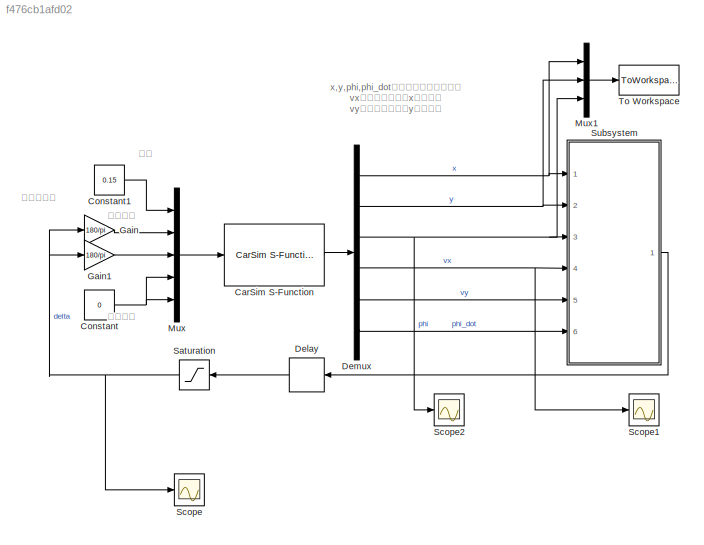
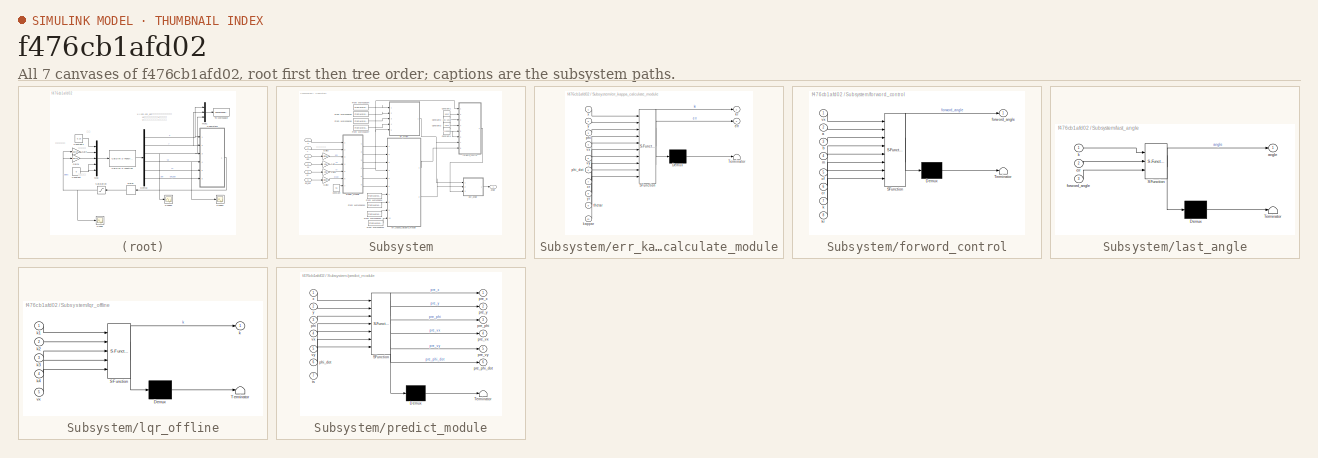
[diagram: thumbnail index - all 7 canvases of the model, root first then tree order]
MODEL slx_f476cb1afd02
KIND model
CONFIG AbsTol = auto
CONFIG EnableMultiTasking = off
CONFIG FixedStep = auto
CONFIG MaxStep = auto
CONFIG MinStep = auto
CONFIG RelTol = 1e-3
CONFIG SampleTimeConstraint = Unconstrained
CONFIG Solver = VariableStepAuto
CONFIG SolverName = VariableStepAuto
CONFIG StartTime = 0.0
CONFIG StopTime = 30
BLOCK [Reference] CarSim S-Function  REF=Solver_SF/CarSim S-Function
  Ports = [1, 1]
  Priority = 1
  SourceBlock = Solver_SF/CarSim S-Function
  SourceType = Vehicle math model library
BLOCK [Constant] Constant
  Value = 0
BLOCK [Constant] Constant1
  Value = 0.15
BLOCK [Delay] Delay
  DelayLength = 1
  InputPortMap = u0
  Ports = [1, 1]
  UseCircularBuffer = on
BLOCK [Demux] Demux
  DisplayOption = bar
  Outputs = 6
  Ports = [1, 6]
BLOCK [Gain] Gain
  Gain = 180/pi
  OutDataTypeStr = Inherit: Inherit via internal rule
  ParamDataTypeStr = Inherit: Inherit via internal rule
  SaturateOnIntegerOverflow = off
BLOCK [Gain] Gain1
  Gain = 180/pi
  OutDataTypeStr = Inherit: Inherit via internal rule
  ParamDataTypeStr = Inherit: Inherit via internal rule
  SaturateOnIntegerOverflow = off
BLOCK [Mux] Mux
  DisplayOption = bar
  Inputs = 5
  Ports = [5, 1]
BLOCK [Mux] Mux1
  DisplayOption = bar
  Inputs = 3
  Ports = [3, 1]
BLOCK [Saturate] Saturation
  InputPortMap = u0
  LowerLimit = -1.2
  Ports = [1, 1]
  UpperLimit = 1.2
BLOCK [Scope] Scope
  Floating = off
  NumInputPorts = 1
  Ports = [1]
  ScopeSpecificationString = Simulink.scopes.TimeScopeBlockCfg('CurrentConfiguration', extmgr.ConfigurationSet(extmgr.Configuration('Core','General UI',true),extmgr.Configuration('Core','Source UI',true),extmgr.Configuration('Sources','WiredSimulink',true),extmgr.Configuration('Visuals','Time Domain',true,'SerializedDisplays',{struct('MinYLimReal','-1.41063','MaxYLimReal','1.49007','YLabelReal','','MinYLimMag','0.00000','MaxY...<+1402ch>
BLOCK [Scope] Scope1
  Floating = off
  NumInputPorts = 1
  Ports = [1]
  ScopeSpecificationString = Simulink.scopes.TimeScopeBlockCfg('CurrentConfiguration', extmgr.ConfigurationSet(extmgr.Configuration('Core','General UI',true),extmgr.Configuration('Core','Source UI',true),extmgr.Configuration('Sources','WiredSimulink',true,'DataLoggingVariableName','ScopeData1'),extmgr.Configuration('Visuals','Time Domain',true,'SerializedDisplays',{struct('MinYLimReal','-9.92834','MaxYLimReal','89.35505','YLa...<+1444ch>
BLOCK [Scope] Scope2
  Floating = off
  NumInputPorts = 1
  Ports = [1]
  ScopeSpecificationString = Simulink.scopes.TimeScopeBlockCfg('CurrentConfiguration', extmgr.ConfigurationSet(extmgr.Configuration('Core','General UI',true),extmgr.Configuration('Core','Source UI',true),extmgr.Configuration('Sources','WiredSimulink',true,'DataLoggingVariableName','ScopeData2'),extmgr.Configuration('Visuals','Time Domain',true,'SerializedDisplays',{struct('MinYLimReal','-44.79296','MaxYLimReal','402.37867','Y...<+1451ch>
BLOCK [SubSystem] Subsystem
  Ports = [6, 1]
  RequestExecContextInheritance = off
BLOCK [Constant] Subsystem/Constant
  Value = 0.1
BLOCK [Constant] Subsystem/Constant1
  Value = 1.015
BLOCK [Constant] Subsystem/Constant2
  Value = 2.91-1.015
BLOCK [Constant] Subsystem/Constant3
  Value = 1412
BLOCK [Constant] Subsystem/Constant4
  Value = -110000
BLOCK [FromWorkspace] Subsystem/From Workspace
  SampleTime = 0
  VariableName = xr
  ZeroCross = on
BLOCK [FromWorkspace] Subsystem/From Workspace1
  SampleTime = 0
  VariableName = yr
  ZeroCross = on
BLOCK [FromWorkspace] Subsystem/From Workspace2
  SampleTime = 0
  VariableName = thetar
  ZeroCross = on
BLOCK [FromWorkspace] Subsystem/From Workspace3
  SampleTime = 0
  VariableName = kappar
  ZeroCross = on
BLOCK [FromWorkspace] Subsystem/From Workspace4
  SampleTime = 0
  VariableName = k1
  ZeroCross = on
BLOCK [FromWorkspace] Subsystem/From Workspace5
  SampleTime = 0
  VariableName = k2
  ZeroCross = on
BLOCK [FromWorkspace] Subsystem/From Workspace6
  SampleTime = 0
  VariableName = k3
  ZeroCross = on
BLOCK [FromWorkspace] Subsystem/From Workspace7
  SampleTime = 0
  VariableName = k4
  ZeroCross = on
BLOCK [Gain] Subsystem/Gain
  Gain = 1/3.6
  OutDataTypeStr = Inherit: Inherit via internal rule
  ParamDataTypeStr = Inherit: Inherit via internal rule
  SaturateOnIntegerOverflow = off
BLOCK [Gain] Subsystem/Gain1
  Gain = 1/3.6
  OutDataTypeStr = Inherit: Inherit via internal rule
  ParamDataTypeStr = Inherit: Inherit via internal rule
  SaturateOnIntegerOverflow = off
BLOCK [Gain] Subsystem/Gain2
  Gain = pi/180
  OutDataTypeStr = Inherit: Inherit via internal rule
  ParamDataTypeStr = Inherit: Inherit via internal rule
  SaturateOnIntegerOverflow = off
BLOCK [Gain] Subsystem/Gain3
  Gain = pi/180
  OutDataTypeStr = Inherit: Inherit via internal rule
  ParamDataTypeStr = Inherit: Inherit via internal rule
  SaturateOnIntegerOverflow = off
BLOCK [Outport] Subsystem/angle
  IconDisplay = Port number
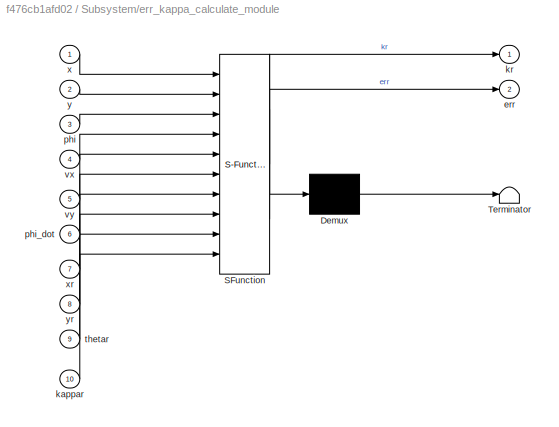
BLOCK [SubSystem] Subsystem/err_kappa_calculate_module
  ErrorFcn = Stateflow.Translate.translate
  PermitHierarchicalResolution = ExplicitOnly
  Ports = [10, 2]
  RequestExecContextInheritance = off
  SFBlockType = MATLAB Function
  TreatAsAtomicUnit = on
BLOCK [Demux] Subsystem/err_kappa_calculate_module/ Demux 
  Outputs = 1
  Ports = [1, 1]
BLOCK [S-Function] Subsystem/err_kappa_calculate_module/ SFunction 
  EnableBusSupport = on
  FunctionName = sf_sfun
  PortCounts = [10 3]
  Ports = [10, 3]
  SFcnIsStateOwnerBlock = off
  SFunctionDeploymentMode = off
  Tag = Stateflow S-Function pid_lqr_demo 1
BLOCK [Terminator] Subsystem/err_kappa_calculate_module/ Terminator 
BLOCK [Outport] Subsystem/err_kappa_calculate_module/err
  IconDisplay = Port number
  Port = 2
BLOCK [Inport] Subsystem/err_kappa_calculate_module/kappar
  IconDisplay = Port number
  Port = 10
BLOCK [Outport] Subsystem/err_kappa_calculate_module/kr
  IconDisplay = Port number
BLOCK [Inport] Subsystem/err_kappa_calculate_module/phi
  IconDisplay = Port number
  Port = 3
BLOCK [Inport] Subsystem/err_kappa_calculate_module/phi_dot
  IconDisplay = Port number
  Port = 6
BLOCK [Inport] Subsystem/err_kappa_calculate_module/thetar
  IconDisplay = Port number
  Port = 9
BLOCK [Inport] Subsystem/err_kappa_calculate_module/vx
  IconDisplay = Port number
  Port = 4
BLOCK [Inport] Subsystem/err_kappa_calculate_module/vy
  IconDisplay = Port number
  Port = 5
BLOCK [Inport] Subsystem/err_kappa_calculate_module/x
  IconDisplay = Port number
BLOCK [Inport] Subsystem/err_kappa_calculate_module/xr
  IconDisplay = Port number
  Port = 7
BLOCK [Inport] Subsystem/err_kappa_calculate_module/y
  IconDisplay = Port number
  Port = 2
BLOCK [Inport] Subsystem/err_kappa_calculate_module/yr
  IconDisplay = Port number
  Port = 8
BLOCK [SubSystem] Subsystem/forword_control
  ErrorFcn = Stateflow.Translate.translate
  PermitHierarchicalResolution = ExplicitOnly
  Ports = [8, 1]
  RequestExecContextInheritance = off
  SFBlockType = MATLAB Function
  TreatAsAtomicUnit = on
BLOCK [Demux] Subsystem/forword_control/ Demux 
  Outputs = 1
  Ports = [1, 1]
BLOCK [S-Function] Subsystem/forword_control/ SFunction 
  EnableBusSupport = on
  FunctionName = sf_sfun
  PortCounts = [8 2]
  Ports = [8, 2]
  SFcnIsStateOwnerBlock = off
  SFunctionDeploymentMode = off
  Tag = Stateflow S-Function pid_lqr_demo 4
BLOCK [Terminator] Subsystem/forword_control/ Terminator 
BLOCK [Inport] Subsystem/forword_control/a
  IconDisplay = Port number
  Port = 2
BLOCK [Inport] Subsystem/forword_control/b
  IconDisplay = Port number
  Port = 3
BLOCK [Inport] Subsystem/forword_control/cf
  IconDisplay = Port number
  Port = 5
BLOCK [Inport] Subsystem/forword_control/cr
  IconDisplay = Port number
  Port = 6
BLOCK [Outport] Subsystem/forword_control/forword_angle
  IconDisplay = Port number
BLOCK [Inport] Subsystem/forword_control/k
  IconDisplay = Port number
  Port = 7
BLOCK [Inport] Subsystem/forword_control/kr
  IconDisplay = Port number
  Port = 8
BLOCK [Inport] Subsystem/forword_control/m
  IconDisplay = Port number
  Port = 4
BLOCK [Inport] Subsystem/forword_control/vx
  IconDisplay = Port number
BLOCK [SubSystem] Subsystem/last_angle
  ErrorFcn = Stateflow.Translate.translate
  PermitHierarchicalResolution = ExplicitOnly
  Ports = [3, 1]
  RequestExecContextInheritance = off
  SFBlockType = MATLAB Function
  TreatAsAtomicUnit = on
BLOCK [Demux] Subsystem/last_angle/ Demux 
  Outputs = 1
  Ports = [1, 1]
BLOCK [S-Function] Subsystem/last_angle/ SFunction 
  EnableBusSupport = on
  FunctionName = sf_sfun
  PortCounts = [3 2]
  Ports = [3, 2]
  SFcnIsStateOwnerBlock = off
  SFunctionDeploymentMode = off
  Tag = Stateflow S-Function pid_lqr_demo 5
BLOCK [Terminator] Subsystem/last_angle/ Terminator 
BLOCK [Outport] Subsystem/last_angle/angle
  IconDisplay = Port number
BLOCK [Inport] Subsystem/last_angle/err
  IconDisplay = Port number
  Port = 2
BLOCK [Inport] Subsystem/last_angle/forword_angle
  IconDisplay = Port number
  Port = 3
BLOCK [Inport] Subsystem/last_angle/k
  IconDisplay = Port number
BLOCK [SubSystem] Subsystem/lqr_offline
  ErrorFcn = Stateflow.Translate.translate
  PermitHierarchicalResolution = ExplicitOnly
  Ports = [5, 1]
  RequestExecContextInheritance = off
  SFBlockType = MATLAB Function
  TreatAsAtomicUnit = on
BLOCK [Demux] Subsystem/lqr_offline/ Demux 
  Outputs = 1
  Ports = [1, 1]
BLOCK [S-Function] Subsystem/lqr_offline/ SFunction 
  EnableBusSupport = on
  FunctionName = sf_sfun
  PortCounts = [5 2]
  Ports = [5, 2]
  SFcnIsStateOwnerBlock = off
  SFunctionDeploymentMode = off
  Tag = Stateflow S-Function pid_lqr_demo 3
BLOCK [Terminator] Subsystem/lqr_offline/ Terminator 
BLOCK [Outport] Subsystem/lqr_offline/k
  IconDisplay = Port number
BLOCK [Inport] Subsystem/lqr_offline/k1
  IconDisplay = Port number
BLOCK [Inport] Subsystem/lqr_offline/k2
  IconDisplay = Port number
  Port = 2
BLOCK [Inport] Subsystem/lqr_offline/k3
  IconDisplay = Port number
  Port = 3
BLOCK [Inport] Subsystem/lqr_offline/k4
  IconDisplay = Port number
  Port = 4
BLOCK [Inport] Subsystem/lqr_offline/vx
  IconDisplay = Port number
  Port = 5
BLOCK [Inport] Subsystem/phi
  IconDisplay = Port number
  Port = 3
BLOCK [Inport] Subsystem/phi_dot
  IconDisplay = Port number
  Port = 6
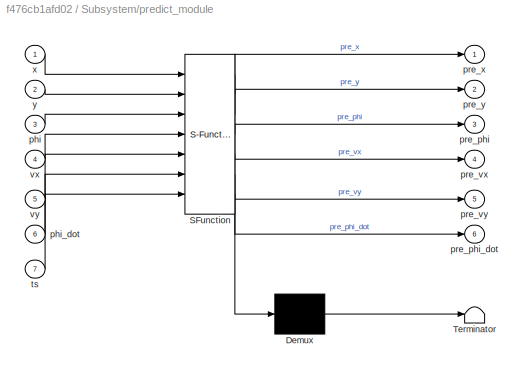
BLOCK [SubSystem] Subsystem/predict_module
  ErrorFcn = Stateflow.Translate.translate
  PermitHierarchicalResolution = ExplicitOnly
  Ports = [7, 6]
  RequestExecContextInheritance = off
  SFBlockType = MATLAB Function
  TreatAsAtomicUnit = on
BLOCK [Demux] Subsystem/predict_module/ Demux 
  Outputs = 1
  Ports = [1, 1]
BLOCK [S-Function] Subsystem/predict_module/ SFunction 
  EnableBusSupport = on
  FunctionName = sf_sfun
  PortCounts = [7 7]
  Ports = [7, 7]
  SFcnIsStateOwnerBlock = off
  SFunctionDeploymentMode = off
  Tag = Stateflow S-Function pid_lqr_demo 2
BLOCK [Terminator] Subsystem/predict_module/ Terminator 
BLOCK [Inport] Subsystem/predict_module/phi
  IconDisplay = Port number
  Port = 3
BLOCK [Inport] Subsystem/predict_module/phi_dot
  IconDisplay = Port number
  Port = 6
BLOCK [Outport] Subsystem/predict_module/pre_phi
  IconDisplay = Port number
  Port = 3
BLOCK [Outport] Subsystem/predict_module/pre_phi_dot
  IconDisplay = Port number
  Port = 6
BLOCK [Outport] Subsystem/predict_module/pre_vx
  IconDisplay = Port number
  Port = 4
BLOCK [Outport] Subsystem/predict_module/pre_vy
  IconDisplay = Port number
  Port = 5
BLOCK [Outport] Subsystem/predict_module/pre_x
  IconDisplay = Port number
BLOCK [Outport] Subsystem/predict_module/pre_y
  IconDisplay = Port number
  Port = 2
BLOCK [Inport] Subsystem/predict_module/ts
  IconDisplay = Port number
  Port = 7
BLOCK [Inport] Subsystem/predict_module/vx
  IconDisplay = Port number
  Port = 4
BLOCK [Inport] Subsystem/predict_module/vy
  IconDisplay = Port number
  Port = 5
BLOCK [Inport] Subsystem/predict_module/x
  IconDisplay = Port number
BLOCK [Inport] Subsystem/predict_module/y
  IconDisplay = Port number
  Port = 2
BLOCK [Inport] Subsystem/vx
  IconDisplay = Port number
  Port = 4
BLOCK [Inport] Subsystem/vy
  IconDisplay = Port number
  Port = 5
BLOCK [Inport] Subsystem/x
  IconDisplay = Port number
BLOCK [Inport] Subsystem/y
  IconDisplay = Port number
  Port = 2
BLOCK [ToWorkspace] To Workspace
  FixptAsFi = on
  MaxDataPoints = inf
  Ports = [1]
  SampleTime = -1
  Save2DSignal = 3-D array (concatenate along third dimension)
  SaveFormat = Timeseries
  VariableName = xypsi
ANNOTATION (root): x,y,phi,phi_dot为世界坐标系下的表示 vx为沿车身坐标系x轴的速度 vy为沿车身坐标系y轴的速度
ANNOTATION (root): 前轮转角
ANNOTATION (root): 后轮转角
ANNOTATION (root): 弧度转角度
ANNOTATION (root): 油门
ANNOTATION Subsystem: 角度转弧度
LINE CarSim S-Function:1 -> Demux:1
LINE Constant1:1 -> Mux:1
NET Constant:1 -> Mux:4, Mux:5
LINE Delay:1 -> Saturation:1
NET Demux:1 -> Mux1:1, Subsystem:1
NET Demux:2 -> Mux1:2, Subsystem:2
NET Demux:3 -> Mux1:3, Scope2:1, Subsystem:3
NET Demux:4 -> Scope1:1, Subsystem:4
LINE Demux:5 -> Subsystem:5
LINE Demux:6 -> Subsystem:6
LINE Gain1:1 -> Mux:3
LINE Gain:1 -> Mux:2
LINE Mux1:1 -> To Workspace:1
LINE Mux:1 -> CarSim S-Function:1
NET Saturation:1 -> Gain1:1, Gain:1, Scope:1
LINE Subsystem/Constant1:1 -> Subsystem/forword_control:2
LINE Subsystem/Constant2:1 -> Subsystem/forword_control:3
LINE Subsystem/Constant3:1 -> Subsystem/forword_control:4
NET Subsystem/Constant4:1 -> Subsystem/forword_control:5, Subsystem/forword_control:6
LINE Subsystem/Constant:1 -> Subsystem/predict_module:7
LINE Subsystem/From Workspace1:1 -> Subsystem/err_kappa_calculate_module:8
LINE Subsystem/From Workspace2:1 -> Subsystem/err_kappa_calculate_module:9
LINE Subsystem/From Workspace3:1 -> Subsystem/err_kappa_calculate_module:10
LINE Subsystem/From Workspace4:1 -> Subsystem/lqr_offline:1
LINE Subsystem/From Workspace5:1 -> Subsystem/lqr_offline:2
LINE Subsystem/From Workspace6:1 -> Subsystem/lqr_offline:3
LINE Subsystem/From Workspace7:1 -> Subsystem/lqr_offline:4
LINE Subsystem/From Workspace:1 -> Subsystem/err_kappa_calculate_module:7
LINE Subsystem/Gain1:1 -> Subsystem/predict_module:5
LINE Subsystem/Gain2:1 -> Subsystem/predict_module:6
LINE Subsystem/Gain3:1 -> Subsystem/predict_module:3
LINE Subsystem/Gain:1 -> Subsystem/predict_module:4
LINE Subsystem/err_kappa_calculate_module:1 -> Subsystem/forword_control:8
LINE Subsystem/err_kappa_calculate_module:2 -> Subsystem/last_angle:2
LINE Subsystem/forword_control:1 -> Subsystem/last_angle:3
LINE Subsystem/last_angle:1 -> Subsystem/angle:1
NET Subsystem/lqr_offline:1 -> Subsystem/forword_control:7, Subsystem/last_angle:1
LINE Subsystem/phi:1 -> Subsystem/Gain3:1
LINE Subsystem/phi_dot:1 -> Subsystem/Gain2:1
LINE Subsystem/predict_module:1 -> Subsystem/err_kappa_calculate_module:1
LINE Subsystem/predict_module:2 -> Subsystem/err_kappa_calculate_module:2
LINE Subsystem/predict_module:3 -> Subsystem/err_kappa_calculate_module:3
NET Subsystem/predict_module:4 -> Subsystem/err_kappa_calculate_module:4, Subsystem/forword_control:1, Subsystem/lqr_offline:5
LINE Subsystem/predict_module:5 -> Subsystem/err_kappa_calculate_module:5
LINE Subsystem/predict_module:6 -> Subsystem/err_kappa_calculate_module:6
LINE Subsystem/vx:1 -> Subsystem/Gain:1
LINE Subsystem/vy:1 -> Subsystem/Gain1:1
LINE Subsystem/x:1 -> Subsystem/predict_module:1
LINE Subsystem/y:1 -> Subsystem/predict_module:2
LINE Subsystem:1 -> Delay:1
note: NET lines group one-source signal fan-out (src -> all destinations, sorted); 1:1 wires keep LINE
CHART Subsystem/err_kappa_calculate_module states=1 transitions=1
  STATE_LABEL 'eML_blk_kernel()'
  STATE_LABEL 'SCRIPT:\nfunction [kr,err] = fcn(x,y,phi,vx,vy,phi_dot,xr,yr,thetar,kappar)\n    n=length(xr);\n    d_min=(x-xr(1))^2+(y-yr(1))^2;\n    min=1;\n    for i=1:n\n        d=(x-xr(i))^2+(y-yr(i))^2;\n        if d<d_min\n            d_min=d;\n            min=i;\n        end\n    end\n    dmin=min;\n    tor=[cos(thetar(dmin));sin(thetar(dmin))];\n    nor=[-sin(thetar(dmin));cos(thetar(dmin))];\n    d_err=[x-xr(dmin);y-...<+595ch>'
CHART Subsystem/predict_module states=1 transitions=1
  STATE_LABEL 'eML_blk_kernel()'
  STATE_LABEL 'SCRIPT:\nfunction [pre_x,pre_y,pre_phi,pre_vx,pre_vy,pre_phi_dot] = fcn(x,y,phi,vx,vy,phi_dot,ts)\n    pre_x=x+vx*ts*cos(phi)-vy*ts*sin(phi);\n    pre_y=y+vy*ts*cos(phi)+vx*ts*sin(phi);\n    pre_phi=phi+phi_dot*ts;\n    pre_vx=vx;\n    pre_vy=vy;\n    pre_phi_dot=phi_dot;\nend\n\n'
CHART Subsystem/lqr_offline states=1 transitions=1
  STATE_LABEL 'eML_blk_kernel()'
  STATE_LABEL 'SCRIPT:\nfunction k  = fcn(k1,k2,k3,k4,vx)\n    if abs(vx)<0.01\n        k=[0,0,0,0];\n    else\n        index=round(vx/0.01);\n        k=[k1(index),k2(index),k3(index),k4(index)];\n    end\nend\n\n'
CHART Subsystem/forword_control states=1 transitions=1
  STATE_LABEL 'eML_blk_kernel()'
  STATE_LABEL 'SCRIPT:\nfunction forword_angle = fcn(vx,a,b,m,cf,cr,k,kr)\n    forword_angle=kr*(a+b-b*k(3)-(m*vx*vx/(a+b))*((b/cf)+(a/cr)*k(3)-(a/cr)));\nend\n'
CHART Subsystem/last_angle states=1 transitions=1
  STATE_LABEL 'eML_blk_kernel()'
  STATE_LABEL 'SCRIPT:\nfunction angle = fcn(k,err,forword_angle)\n\n    angle=-k*err+forword_angle;\nend\n'
